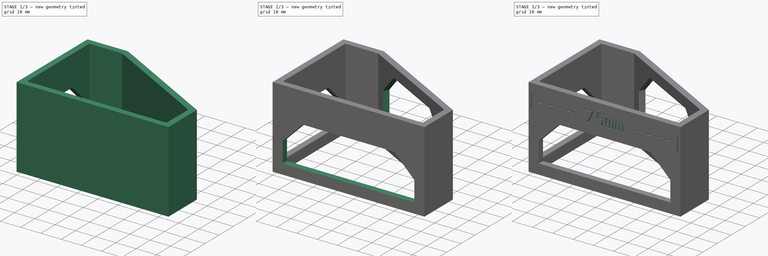
[diagram: build sequence overview — one tinted view per stage of 3, left to right]
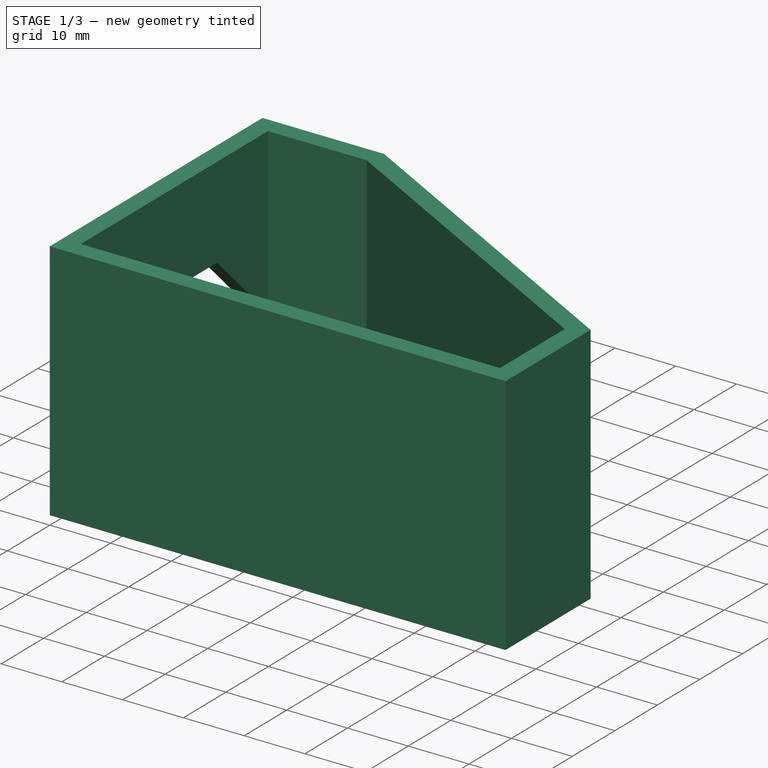
[diagram: stage 1 of 3 — iso view after this stage's code; geometry added in this stage tinted green]
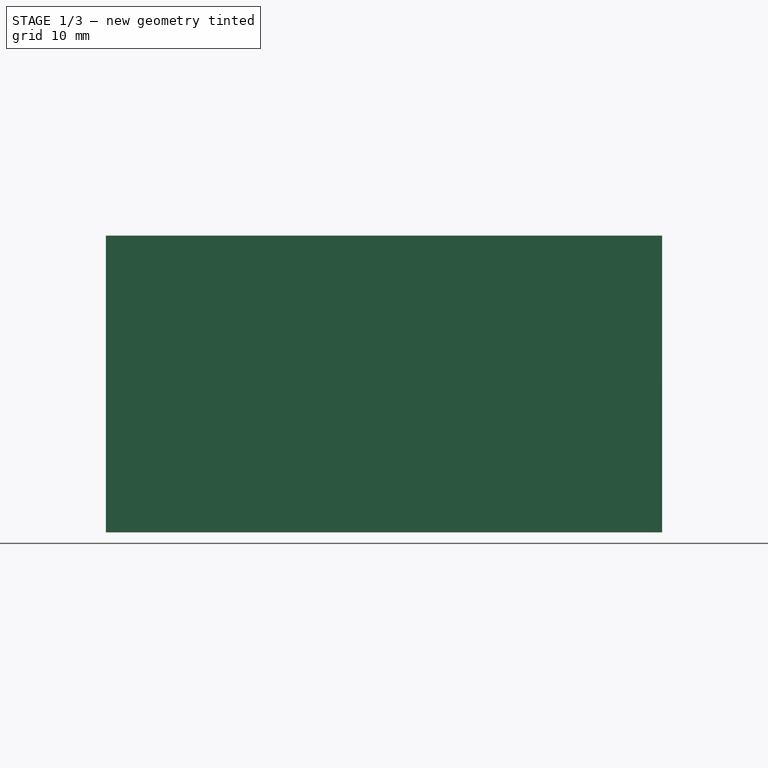
[diagram: stage 1 of 3 — front view after this stage's code; geometry added in this stage tinted green]
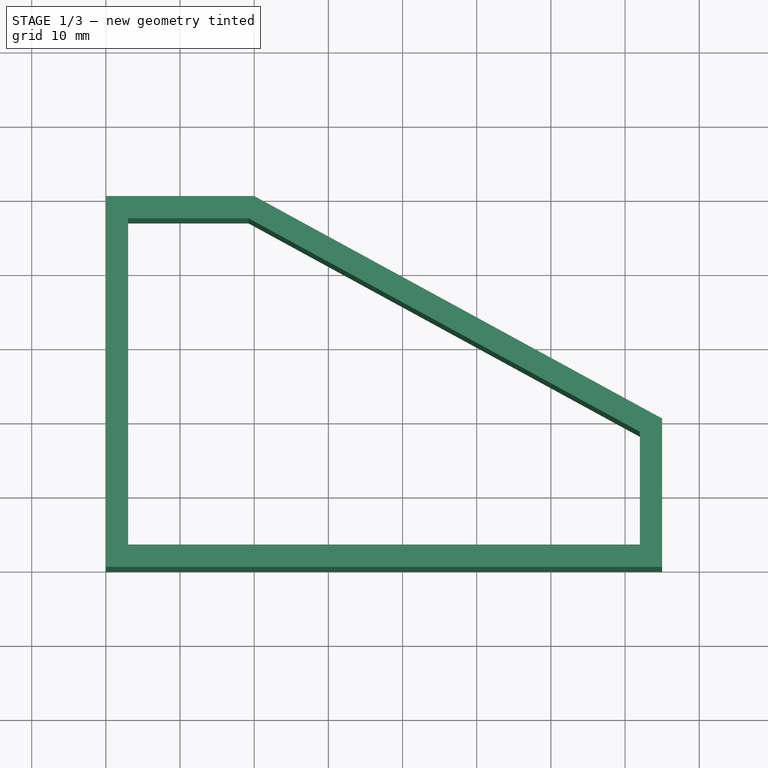
[diagram: stage 1 of 3 — top view after this stage's code; geometry added in this stage tinted green]
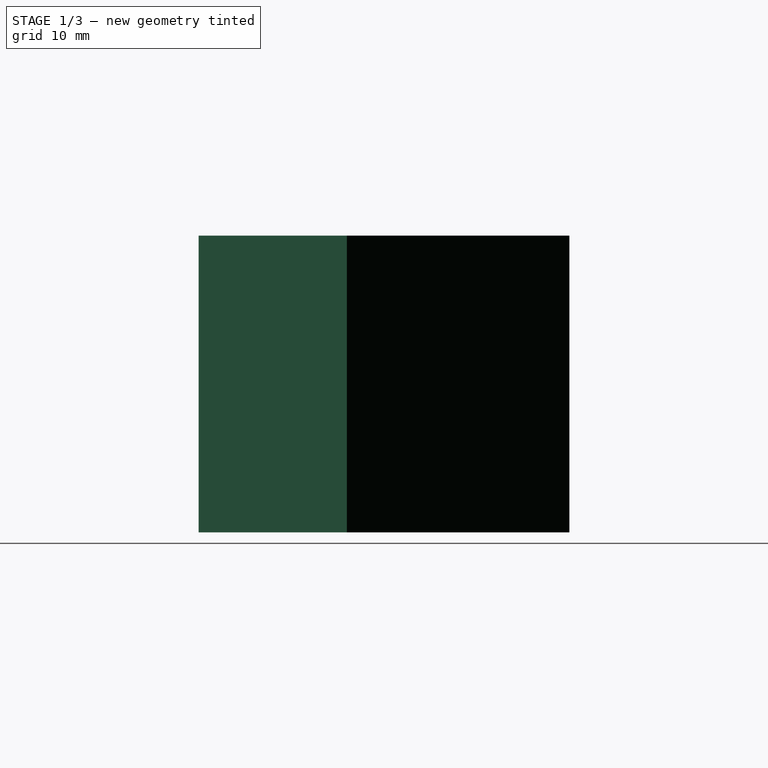
[diagram: stage 1 of 3 — right view after this stage's code; geometry added in this stage tinted green]
FCSTD DOCUMENT  (FreeCAD 0.20R29410 (Git))
Label: squaring-bracket
License: All rights reserved
LicenseURL: http://en.wikipedia.org/wiki/All_rights_reserved
objects: PartDesign::Pocket×5, Sketcher::SketchObject×4, Part::Part2DObjectPython×2, PartDesign::Pad×1, PartDesign::Plane×1, PartDesign::Body×1
note: 20 computed .brp shape members not serialized (recipe doc carries the construction recipe); baked Part::Feature solids carry a one-line shape summary decoded from their .brp

FEATURE [Sketcher::SketchObject] Sketch
  FullyConstrained = true
  MapMode = 5
  Support = -> [XY_Plane]
  sketch-geometry (11):
    g0: LineSegment StartX=0 StartY=0 StartZ=0 EndX=75 EndY=0 EndZ=0
    g1: LineSegment StartX=75 StartY=0 StartZ=0 EndX=75 EndY=20 EndZ=0
    g2: LineSegment StartX=75 StartY=20 StartZ=0 EndX=20 EndY=50 EndZ=0
    g3: LineSegment StartX=20 StartY=50 StartZ=0 EndX=0 EndY=50 EndZ=0
    g4: LineSegment StartX=0 StartY=50 StartZ=0 EndX=0 EndY=0 EndZ=0
    g5: LineSegment StartX=3 StartY=3 StartZ=0 EndX=3 EndY=47 EndZ=0
    g6: LineSegment StartX=3 StartY=47 StartZ=0 EndX=19.235 EndY=47 EndZ=0
    g7: LineSegment StartX=19.235 StartY=47 StartZ=0 EndX=72 EndY=18.2191 EndZ=0
    g8: LineSegment StartX=72 StartY=18.2191 StartZ=0 EndX=72 EndY=3 EndZ=0
    g9: LineSegment StartX=72 StartY=3 StartZ=0 EndX=3 EndY=3 EndZ=0
    g10: LineSegment StartX=28.014 StartY=42.2115 StartZ=0 EndX=29.4505 EndY=44.8452 EndZ=0
  constraints (33):
    c: Coincident(g-1,g0)
    c: PointOnObject(g0,g-1)
    c: Coincident(g0,g1)
    c: Vertical(g1)
    c: Coincident(g1,g2)
    c: Coincident(g2,g3)
    c: PointOnObject(g3,g-2)
    c: Coincident(g3,g4)
    c: Coincident(g4,g0)
    c: Horizontal(g3)
    c: DistanceY(g0,g3) = 50
    c: DistanceX(g0,g0) = 75
    c: DistanceX(g3,g3) = 20
    c: DistanceY(g1,g1) = 20
    c: Vertical(g5)
    c: Coincident(g5,g6)
    c: Horizontal(g6)
    c: Coincident(g6,g7)
    c: Coincident(g7,g8)
    c: Vertical(g8)
    c: Coincident(g8,g9)
    c: Coincident(g9,g5)
    c: Horizontal(g9)
    c: DistanceX(g0,g5) = 3
    c: DistanceX(g8,g0) = 3
    c: DistanceY(g5,g3) = 3
    c: DistanceY(g0,g5) = 3
    c: PointOnObject(g10,g7)
    c: PointOnObject(g10,g2)
    c: Distance(g10) = 3
    c: Perpendicular(g2,g10)
    c: Perpendicular(g7,g10)
    c: Distance(g6,g10) = 10
FEATURE [PartDesign::Pad] Pad
  Direction = (1,1,1)
  Length = 40
  Length2 = 100
  Profile = -> Sketch
  Type = 0
FEATURE [Sketcher::SketchObject] Sketch001
  FullyConstrained = true
  MapMode = 5
  Placement = pos=(0,0,0) rot=(0.57735,0.57735,0.57735;2.0944rad)
  Support = -> [YZ_Plane]
  sketch-geometry (7):
    g0: LineSegment StartX=5 StartY=5 StartZ=0 EndX=5 EndY=15 EndZ=0
    g1: LineSegment StartX=5 StartY=15 StartZ=0 EndX=15 EndY=25 EndZ=0
    g2: LineSegment StartX=15 StartY=25 StartZ=0 EndX=35 EndY=25 EndZ=0
    g3: LineSegment StartX=35 StartY=25 StartZ=0 EndX=45 EndY=15 EndZ=0
    g4: LineSegment StartX=45 StartY=15 StartZ=0 EndX=45 EndY=5 EndZ=0
    g5: LineSegment StartX=45 StartY=5 StartZ=0 EndX=5 EndY=5 EndZ=0
    g6: LineSegment StartX=25 StartY=25 StartZ=0 EndX=25 EndY=5 EndZ=0
  constraints (20):
    c: Vertical(g0)
    c: Coincident(g0,g1)
    c: Coincident(g1,g2)
    c: Horizontal(g2)
    c: Coincident(g2,g3)
    c: Coincident(g3,g4)
    c: Vertical(g4)
    c: Coincident(g5,g4)
    c: Coincident(g0,g5)
    c: Horizontal(g5)
    c: Angle(g0,g1) = 2.35619
    c: Angle(g3,g4) = 2.35619
    c: DistanceX(g5,g5) = 40
    c: DistanceX(g-1,g0) = 5
    c: DistanceX(g2,g2) = 20
    c: Vertical(g6)
    c: DistanceY(g-1,g0) = 5
    c: DistanceY(g-1,g1) = 25
    c: Symmetric(g1,g2,g6)
    c: Symmetric(g0,g4,g6)
FEATURE [PartDesign::Pocket] Pocket
  BaseFeature = -> Pad
  Direction = (1,1,1)
  Length = 5
  Length2 = 100
  Profile = -> Sketch001
  Reversed = true
  Type = 0
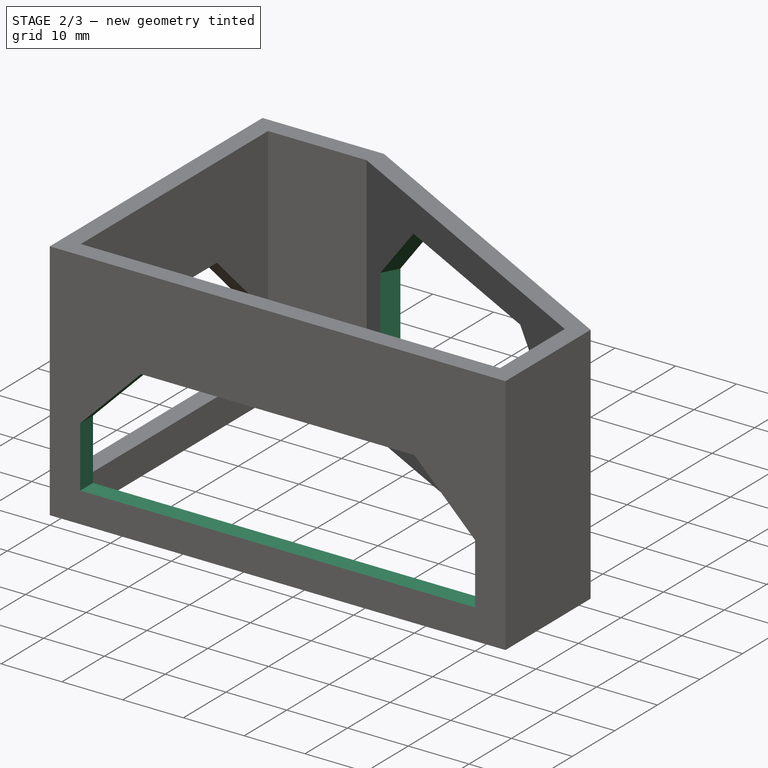
[diagram: stage 2 of 3 — iso view after this stage's code; geometry added in this stage tinted green]
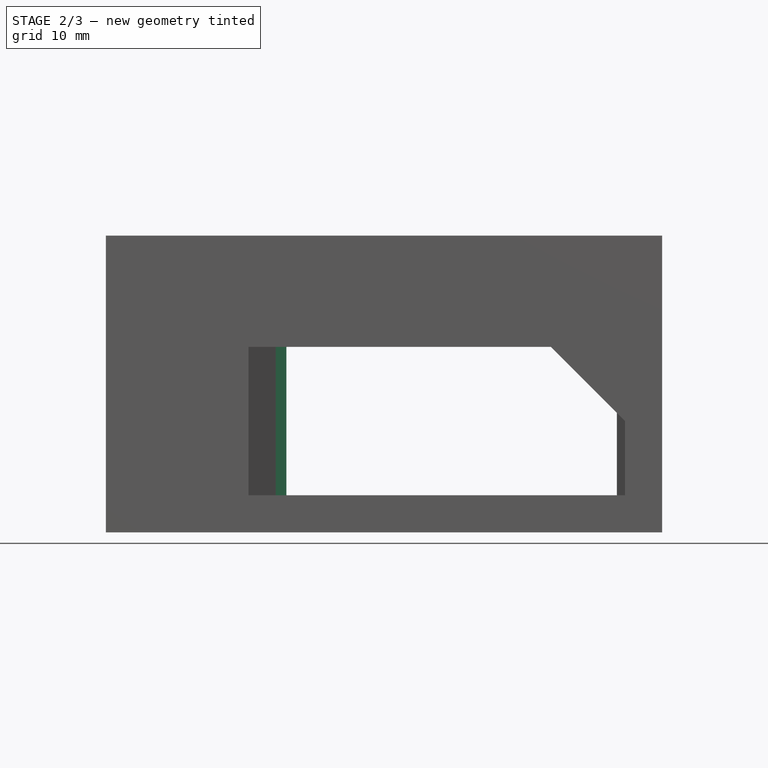
[diagram: stage 2 of 3 — front view after this stage's code; geometry added in this stage tinted green]
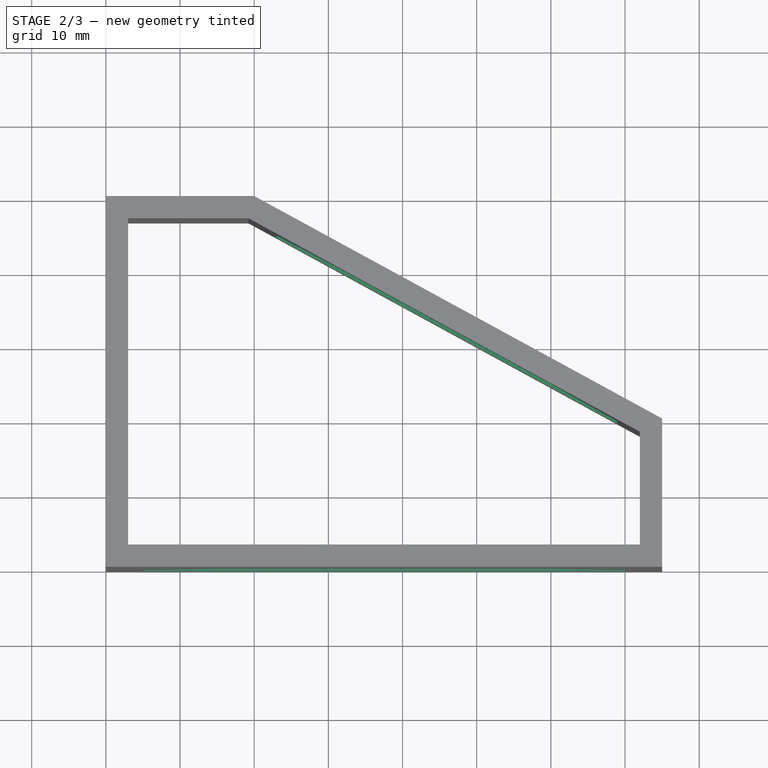
[diagram: stage 2 of 3 — top view after this stage's code; geometry added in this stage tinted green]
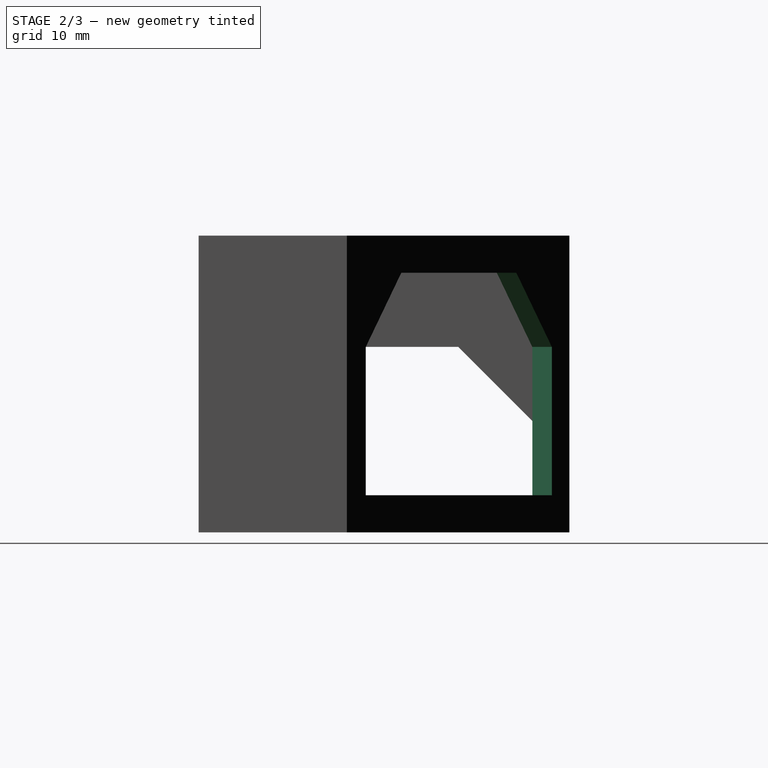
[diagram: stage 2 of 3 — right view after this stage's code; geometry added in this stage tinted green]
FEATURE [Sketcher::SketchObject] Sketch002
  FullyConstrained = true
  MapMode = 5
  Placement = pos=(0,0,0) rot=(1,0,0;1.5708rad)
  Support = -> [XZ_Plane]
  sketch-geometry (6):
    g0: LineSegment StartX=5 StartY=5 StartZ=0 EndX=5 EndY=15 EndZ=0
    g1: LineSegment StartX=5 StartY=15 StartZ=0 EndX=15 EndY=25 EndZ=0
    g2: LineSegment StartX=15 StartY=25 StartZ=0 EndX=60 EndY=25 EndZ=0
    g3: LineSegment StartX=60 StartY=25 StartZ=0 EndX=70 EndY=15 EndZ=0
    g4: LineSegment StartX=70 StartY=15 StartZ=0 EndX=70 EndY=5 EndZ=0
    g5: LineSegment StartX=70 StartY=5 StartZ=0 EndX=5 EndY=5 EndZ=0
  constraints (18):
    c: Vertical(g0)
    c: Coincident(g0,g1)
    c: Coincident(g1,g2)
    c: Horizontal(g2)
    c: Coincident(g2,g3)
    c: Coincident(g3,g4)
    c: Vertical(g4)
    c: Coincident(g4,g5)
    c: Coincident(g5,g0)
    c: Horizontal(g5)
    c: DistanceY(g-1,g0) = 5
    c: DistanceX(g-1,g0) = 5
    c: DistanceX(g-1,g4) = 70
    c: DistanceY(g-1,g1) = 25
    c: DistanceY(g0,g1) = 10
    c: DistanceY(g3,g2) = 10
    c: Angle(g3,g4) = 2.35619
    c: Angle(g0,g1) = 2.35619
FEATURE [PartDesign::Pocket] Pocket001
  BaseFeature = -> Pocket
  Direction = (1,1,1)
  Length = 5
  Length2 = 100
  Profile = -> Sketch002
  Type = 0
FEATURE [Sketcher::SketchObject] Sketch003
  FullyConstrained = false
  MapMode = 5
  Placement = pos=(25.6051,46.9427,0) rot=(0.177447,0.695885,0.695885;2.79036rad)
  Support = -> [Pocket001]
  sketch-geometry (6):
    g0: LineSegment StartX=-50.9548 StartY=5 StartZ=0 EndX=-50.9548 EndY=25 EndZ=0
    g1: LineSegment StartX=-50.9548 StartY=25 StartZ=0 EndX=-40.9548 EndY=35 EndZ=0
    g2: LineSegment StartX=-40.9548 StartY=35 StartZ=0 EndX=-8.55968 EndY=35 EndZ=0
    g3: LineSegment StartX=-8.55968 StartY=35 StartZ=0 EndX=1.44032 EndY=25 EndZ=0
    g4: LineSegment StartX=1.44032 StartY=25 StartZ=0 EndX=1.44032 EndY=5 EndZ=0
    g5: LineSegment StartX=1.44032 StartY=5 StartZ=0 EndX=-50.9548 EndY=5 EndZ=0
  constraints (16):
    c: Vertical(g0)
    c: Coincident(g0,g1)
    c: Coincident(g1,g2)
    c: Horizontal(g2)
    c: Coincident(g2,g3)
    c: Coincident(g3,g4)
    c: Vertical(g4)
    c: Coincident(g4,g5)
    c: Coincident(g5,g0)
    c: Horizontal(g5)
    c: DistanceY(g-1,g4) = 5
    c: Angle(g0,g1) = 2.35619
    c: Angle(g3,g4) = 2.35619
    c: DistanceY(g0,g1) = 10
    c: DistanceY(g3,g2) = 10
    c: DistanceY(g-1,g2) = 35
FEATURE [PartDesign::Pocket] Pocket002
  BaseFeature = -> Pocket001
  Direction = (1,1,1)
  Length = 5
  Length2 = 100
  Profile = -> Sketch003
  Type = 0
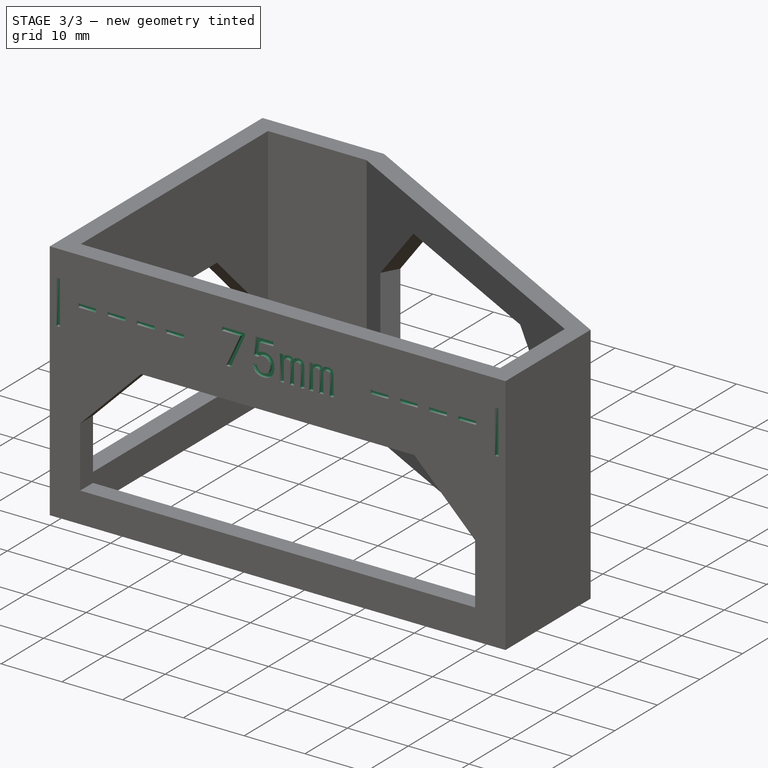
[diagram: stage 3 of 3 — iso view after this stage's code; geometry added in this stage tinted green]
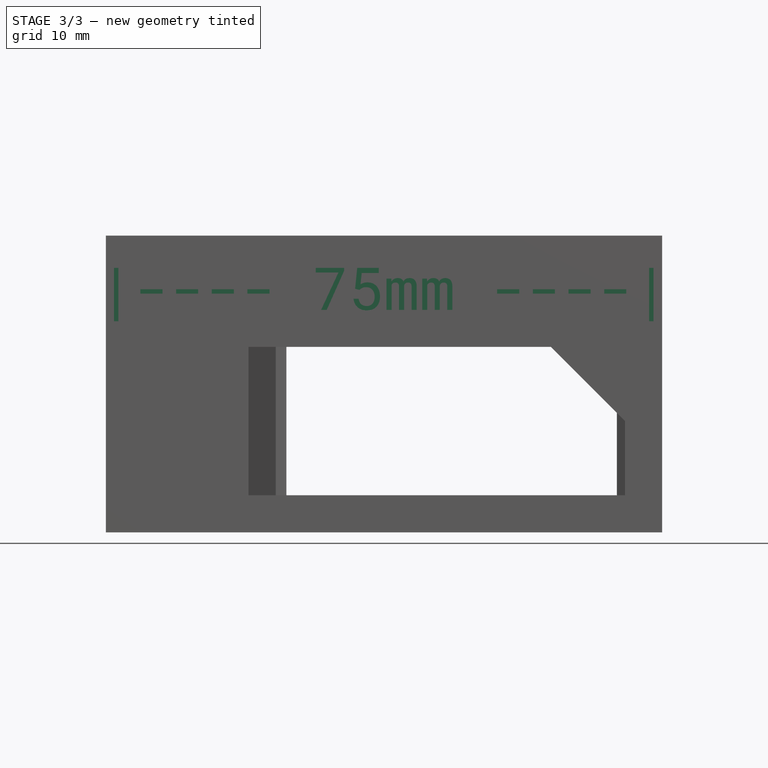
[diagram: stage 3 of 3 — front view after this stage's code; geometry added in this stage tinted green]
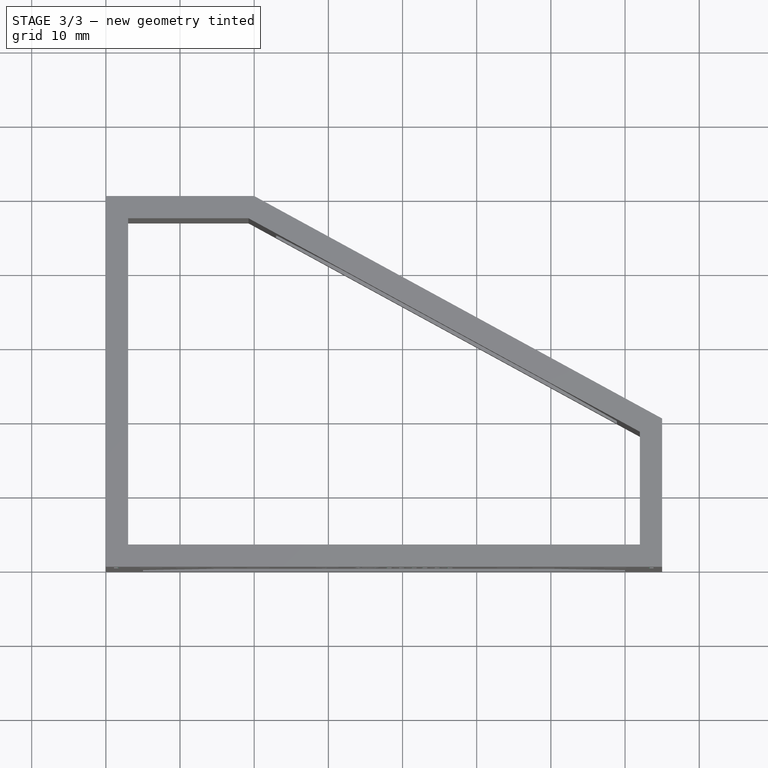
[diagram: stage 3 of 3 — top view after this stage's code; geometry added in this stage tinted green]
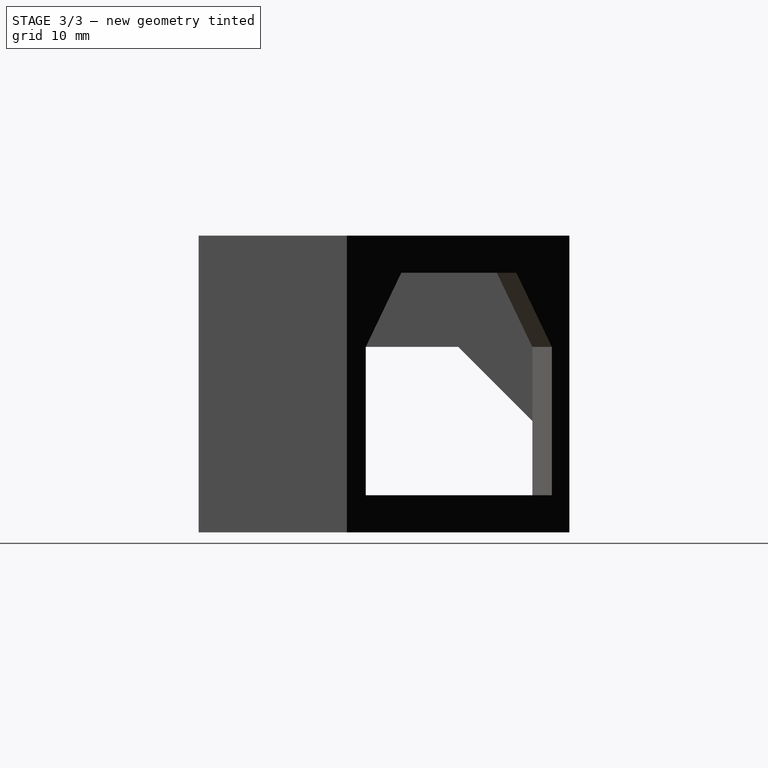
[diagram: stage 3 of 3 — right view after this stage's code; geometry added in this stage tinted green]
FEATURE [Part::Part2DObjectPython] ShapeString  # Draft 2D object (typed FeaturePython)
  FontFile = <userpath>/lumenpnp/lib/fonts/RobotoMono-VariableFont_weight.ttf
  Placement = pos=(0,49,30) rot=(0.57735,-0.57735,-0.57735;2.0944rad)
  Size = 7
  String = |- 50mm -|
  Tracking = 0
FEATURE [PartDesign::Pocket] Pocket003
  BaseFeature = -> Pocket002
  Direction = (1,1,1)
  Length = 0.5
  Length2 = 100
  Profile = -> ShapeString
  Type = 0
FEATURE [Part::Part2DObjectPython] ShapeString001  # Draft 2D object (typed FeaturePython)
  FontFile = <userpath>/lumenpnp/lib/fonts/RobotoMono-VariableFont_weight.ttf
  Placement = pos=(-1,0,30) rot=(1,0,0;1.5708rad)
  Size = 7
  String = |---- 75mm ----|
  Tracking = 0
FEATURE [PartDesign::Pocket] Pocket004
  BaseFeature = -> Pocket003
  Direction = (1,1,1)
  Length = 0.5
  Length2 = 100
  Profile = -> ShapeString001
  Type = 0
FEATURE [PartDesign::Plane] DatumPlane  label="PrintPlane"
  Length = 117.321
  MapMode = 5
  Placement = pos=(0,0,0) rot=(1,0,0;3.14159rad)
  ResizeMode = 0
  Support = -> [Pocket004]
  Width = 92.3205
FEATURE [PartDesign::Body] Body
  Group = -> [Sketch,Pad,Sketch001,Pocket,Sketch002,Pocket001,Sketch003,Pocket002,ShapeString,Pocket003,ShapeString001,Pocket004,DatumPlane]
  Origin = -> Origin
  Tip = -> Pocket004
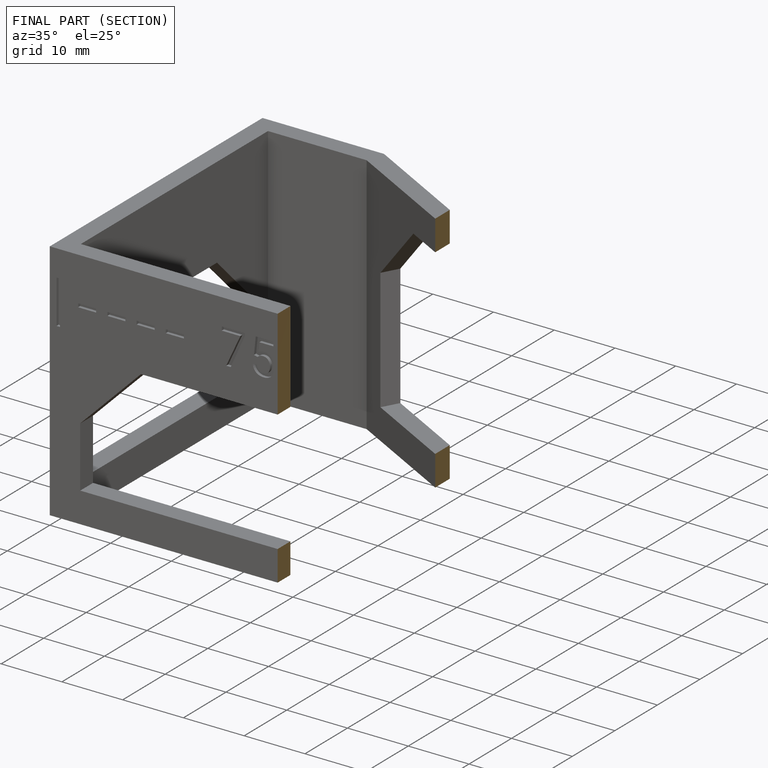
[diagram: finished part — half-section view (interior)]
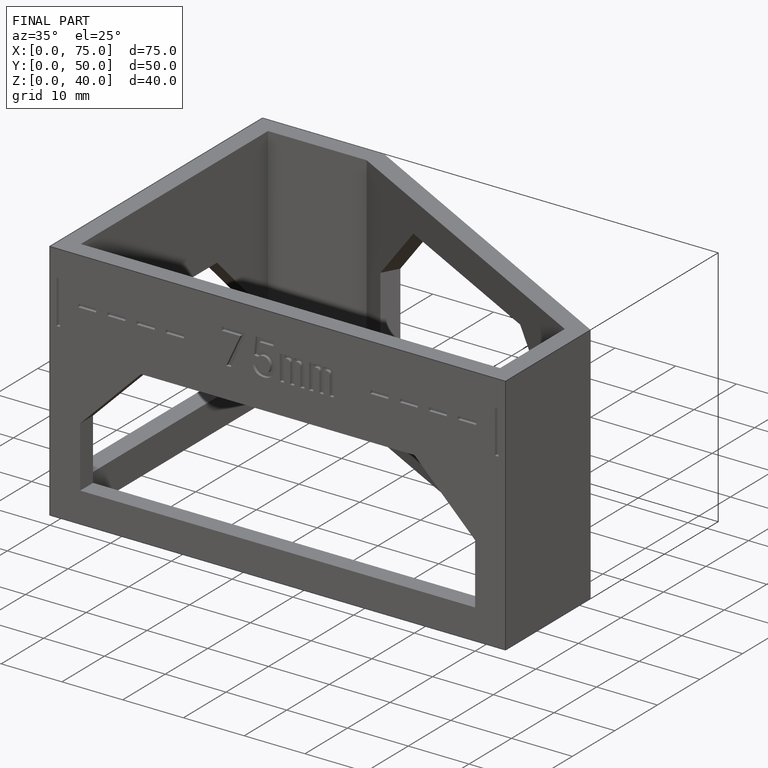
[diagram: finished part — iso view with bounding-box wireframe]
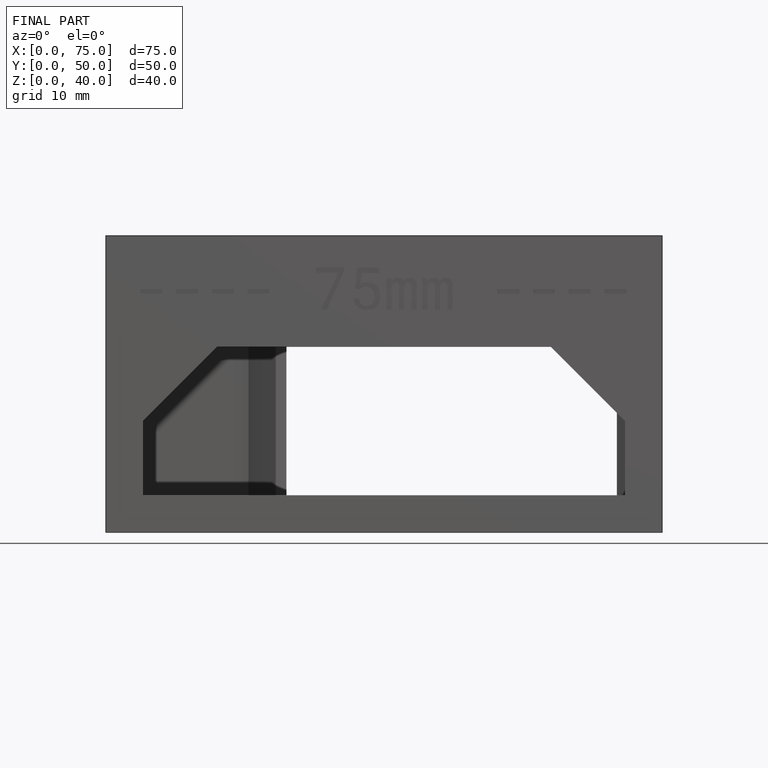
[diagram: finished part — front view with bounding-box wireframe]
